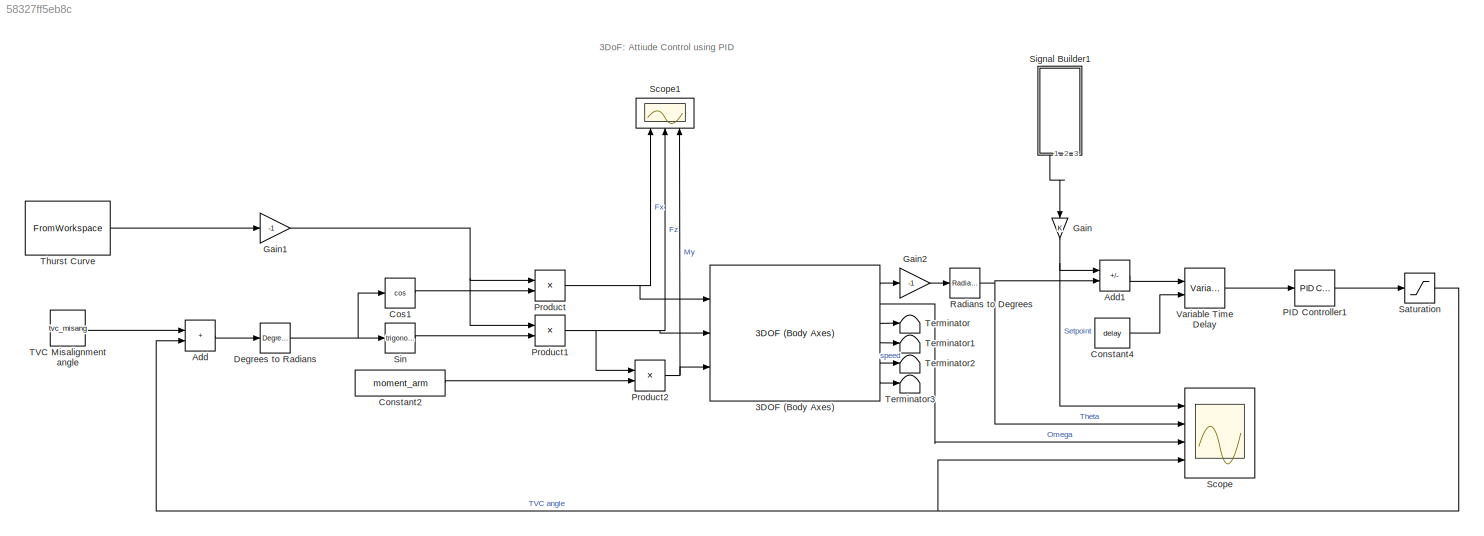
MODEL slx_58327ff5eb8c
KIND model
CONFIG AbsTol = auto
CONFIG EnableMultiTasking = off
CONFIG FixedStep = auto
CONFIG MaxStep = auto
CONFIG MinStep = auto
CONFIG RelTol = 1e-3
CONFIG SampleTimeConstraint = Unconstrained
CONFIG SolverName = VariableStepAuto
CONFIG StartTime = 0.0
CONFIG StopTime = 5
BLOCK [Reference] 3DOF (Body Axes)  REF=shared3dof/3DOF (Body Axes)
  Ports = [3, 6]
  SourceBlock = shared3dof/3DOF (Body Axes)
  SourceProductBaseCode = AE,PW,MT,UV,VE,VP
  SourceType = 3DOF EoM
BLOCK [Sum] Add
  IconShape = rectangular
  Ports = [2, 1]
BLOCK [Sum] Add1
  IconShape = rectangular
  Inputs = +-
  Ports = [2, 1]
BLOCK [Constant] Constant2
  Value = moment_arm
BLOCK [Constant] Constant4
  Value = delay
BLOCK [Trigonometry] Cos1
  Operator = cos
  Ports = [1, 1]
BLOCK [Reference] Degrees to Radians  REF=simulink_extras/Transformations/Degrees to
Radians
  Ports = [1, 1]
  SourceBlock = simulink_extras/Transformations/Degrees to\nRadians
  SourceProductBaseCode = SL
  SourceType = DegreesToRadians
BLOCK [Gain] Gain
  NameLocation = left
BLOCK [Gain] Gain1
  Gain = -1
BLOCK [Gain] Gain2
  Gain = -1
BLOCK [Reference] PID Controller1  REF=pid_lib/PID Controller
  Ports = [1, 1]
  SourceBlock = pid_lib/PID Controller
  SourceProductBaseCode = SL
  SourceType = PID 1dof
BLOCK [Product] Product
  Ports = [2, 1]
BLOCK [Product] Product1
  Ports = [2, 1]
BLOCK [Product] Product2
  Ports = [2, 1]
BLOCK [Reference] Radians to Degrees  REF=simulink_extras/Transformations/Radians
to Degrees
  Ports = [1, 1]
  SourceBlock = simulink_extras/Transformations/Radians\nto Degrees
  SourceProductBaseCode = SL
  SourceType = RadiansToDegrees
BLOCK [Saturate] Saturation
  LowerLimit = -5
  UpperLimit = 5
BLOCK [Scope] Scope
  Floating = off
  NumInputPorts = 4
  Ports = [4]
  ScopeSpecificationString = Simulink.scopes.TimeScopeBlockCfg('CurrentConfiguration', extmgr.ConfigurationSet(extmgr.Configuration('Core','General UI',true),extmgr.Configuration('Core','Source UI',true),extmgr.Configuration('Sources','WiredSimulink',true),extmgr.Configuration('Visuals','Time Domain',true,'SerializedDisplays',{struct('MinYLimReal','-1.60116','MaxYLimReal','7.26254','YLabelReal','','MinYLimMag','0.00000','MaxY...<+1497ch>
BLOCK [Scope] Scope1
  Floating = off
  NameLocation = right
  NumInputPorts = 3
  Ports = [3]
  ScopeSpecificationString = Simulink.scopes.TimeScopeBlockCfg('CurrentConfiguration', extmgr.ConfigurationSet(extmgr.Configuration('Core','General UI',true),extmgr.Configuration('Core','Source UI',true),extmgr.Configuration('Sources','WiredSimulink',true,'DataLoggingVariableName','ScopeData1'),extmgr.Configuration('Visuals','Time Domain',true,'SerializedDisplays',{struct('MinYLimReal','-2.1234','MaxYLimReal','3.49626','YLabe...<+1506ch>
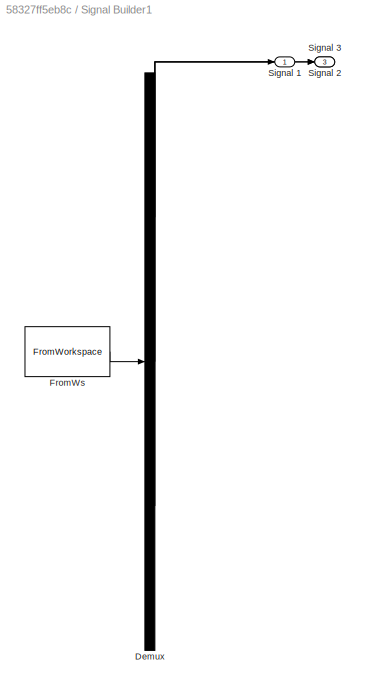
BLOCK [SubSystem] Signal Builder1
  ClipboardFcn = sigbuilder_block('clipboard');
  CloseFcn = sigbuilder_block('close');
  ContinueFcn = sigbuilder_block('continue');
  CopyFcn = sigbuilder_block('copy');
  DeleteFcn = sigbuilder_block('delete');
  LoadFcn = sigbuilder_block('load');
  MaskHideContents = on
  ModelCloseFcn = sigbuilder_block('modelClose');
  NameChangeFcn = sigbuilder_block('namechange');
  NameLocation = left
  OpenFcn = sigbuilder_block('open',[437.6 199.2 550.4 400 ]);
  PauseFcn = sigbuilder_block('pause');
  Ports = [0, 3]
  PreSaveFcn = sigbuilder_block('preSave');
  RequestExecContextInheritance = off
  StartFcn = sigbuilder_block('start');
  StopFcn = sigbuilder_block('stop');
  Tag = STV Subsys
BLOCK [Demux] Signal Builder1/Demux
  DisplayOption = none
  Outputs = 3
  Ports = [1, 3]
  Tag = STV Demux
BLOCK [FromWorkspace] Signal Builder1/FromWs
  Tag = STV FromWs
  VariableName = tuvar
BLOCK [Outport] Signal Builder1/Signal 1
  Tag = STV Outport
BLOCK [Outport] Signal Builder1/Signal 2
  Port = 2
  Tag = STV Outport
BLOCK [Outport] Signal Builder1/Signal 3
  Port = 3
  Tag = STV Outport
BLOCK [Trigonometry] Sin
  Ports = [1, 1]
BLOCK [Constant] TVC Misalignment angle
  Value = tvc_misang
BLOCK [Terminator] Terminator
BLOCK [Terminator] Terminator1
BLOCK [Terminator] Terminator2
BLOCK [Terminator] Terminator3
BLOCK [FromWorkspace] Thurst Curve
  VariableName = F15
BLOCK [VariableTransportDelay] Variable Time Delay
  MaximumDelay = 10
  Ports = [2, 1]
ANNOTATION (root): 3DoF: Attiude Control using PID
LINE 3DOF (Body Axes):1 -> Gain2:1
LINE 3DOF (Body Axes):2 -> Scope:3
LINE 3DOF (Body Axes):3 -> Terminator:1
LINE 3DOF (Body Axes):4 -> Terminator1:1
LINE 3DOF (Body Axes):5 -> Terminator2:1
LINE 3DOF (Body Axes):6 -> Terminator3:1
LINE Add1:1 -> Variable Time Delay:1
LINE Add:1 -> Degrees to Radians:1
LINE Constant2:1 -> Product2:2
LINE Constant4:1 -> Variable Time Delay:2
LINE Cos1:1 -> Product:2
NET Degrees to Radians:1 -> Cos1:1, Sin:1
NET Gain1:1 -> Product1:1, Product:1
LINE Gain2:1 -> Radians to Degrees:1
NET Gain:1 -> Add1:1, Scope:1
LINE PID Controller1:1 -> Saturation:1
NET Product1:1 -> 3DOF (Body Axes):2, Product2:1, Scope1:2
NET Product2:1 -> 3DOF (Body Axes):3, Scope1:3
NET Product:1 -> 3DOF (Body Axes):1, Scope1:1
NET Radians to Degrees:1 -> Add1:2, Scope:2
NET Saturation:1 -> Add:2, Scope:4
LINE Signal Builder1:1 -> Gain:1
LINE Sin:1 -> Product1:2
LINE TVC Misalignment angle:1 -> Add:1
LINE Thurst Curve:1 -> Gain1:1
LINE Variable Time Delay:1 -> PID Controller1:1
note: NET lines group one-source signal fan-out (src -> all destinations, sorted); 1:1 wires keep LINE
